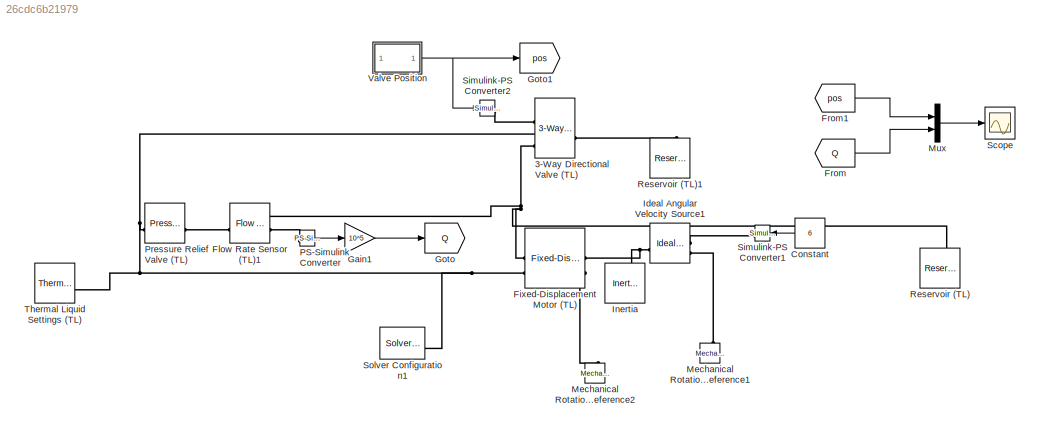
MODEL slx_26cdc6b21979
KIND model
CONFIG AbsTol = auto
CONFIG EnableMultiTasking = off
CONFIG FixedStep = auto
CONFIG MaxStep = auto
CONFIG MinStep = auto
CONFIG RelTol = 1e-3
CONFIG SampleTimeConstraint = Unconstrained
CONFIG SolverName = VariableStepAuto
CONFIG StartTime = 0.0
CONFIG StopTime = 10.0
BLOCK [Reference] 3-Way Directional Valve (TL)  REF=SimscapeFluids_lib/Thermal Liquid/Valves & Orifices/Directional Control
Valves/3-Way Directional
Valve (TL)
  SourceBlock = SimscapeFluids_lib/Thermal Liquid/Valves & Orifices/Directional Control\nValves/3-Way Directional\nValve (TL)
  SourceType = 3-Way Directional\nValve (TL)
BLOCK [Constant] Constant
  NameLocation = top
  Value = 6
BLOCK [Reference] Fixed-Displacement Motor (TL)  REF=SimscapeFluids_lib/Thermal Liquid/Pumps & Motors/Fixed-Displacement
Motor (TL)
  SourceBlock = SimscapeFluids_lib/Thermal Liquid/Pumps & Motors/Fixed-Displacement\nMotor (TL)
  SourceType = Fixed-Displacement\nMotor (TL)
BLOCK [Reference] Flow Rate Sensor (TL)1  REF=fl_lib/Thermal Liquid/Sensors/Flow Rate Sensor
(TL)
  SourceBlock = fl_lib/Thermal Liquid/Sensors/Flow Rate Sensor\n(TL)
  SourceType = Flow Rate Sensor\n(TL)
BLOCK [From] From
  GotoTag = Q
BLOCK [From] From1
  GotoTag = pos
BLOCK [Gain] Gain1
  Gain = 10^5
BLOCK [Goto] Goto
  GotoTag = Q
BLOCK [Goto] Goto1
  GotoTag = pos
BLOCK [Reference] Ideal Angular Velocity Source1  REF=fl_lib/Mechanical/Mechanical Sources/Ideal Angular
Velocity Source
  SourceBlock = fl_lib/Mechanical/Mechanical Sources/Ideal Angular\nVelocity Source
  SourceType = Ideal Angular\nVelocity Source
BLOCK [Reference] Inertia  REF=fl_lib/Mechanical/Rotational Elements/Inertia
  NameLocation = right
  SourceBlock = fl_lib/Mechanical/Rotational Elements/Inertia
  SourceType = Inertia
BLOCK [Reference] Mechanical Rotational Reference1  REF=fl_lib/Mechanical/Rotational Elements/Mechanical
Rotational Reference
  NameLocation = right
  SourceBlock = fl_lib/Mechanical/Rotational Elements/Mechanical\nRotational Reference
  SourceType = Mechanical\nRotational Reference
BLOCK [Reference] Mechanical Rotational Reference2  REF=fl_lib/Mechanical/Rotational Elements/Mechanical
Rotational Reference
  NameLocation = right
  SourceBlock = fl_lib/Mechanical/Rotational Elements/Mechanical\nRotational Reference
  SourceType = Mechanical\nRotational Reference
BLOCK [Mux] Mux
  DisplayOption = bar
  Inputs = 2
BLOCK [Reference] PS-Simulink Converter  REF=nesl_utility/PS-Simulink
Converter
  SourceBlock = nesl_utility/PS-Simulink\nConverter
  SourceType = PS-Simulink\nConverter
BLOCK [Reference] Pressure Relief Valve (TL)  REF=SimscapeFluids_lib/Thermal Liquid/Valves & Orifices/Pressure Control
Valves/Pressure Relief
Valve (TL)
  SourceBlock = SimscapeFluids_lib/Thermal Liquid/Valves & Orifices/Pressure Control\nValves/Pressure Relief\nValve (TL)
  SourceType = Pressure Relief\nValve (TL)
BLOCK [Reference] Reservoir (TL)  REF=fl_lib/Thermal Liquid/Elements/Reservoir (TL)
  NameLocation = right
  SourceBlock = fl_lib/Thermal Liquid/Elements/Reservoir (TL)
  SourceType = Reservoir (TL)
BLOCK [Reference] Reservoir (TL)1  REF=fl_lib/Thermal Liquid/Elements/Reservoir (TL)
  NameLocation = right
  SourceBlock = fl_lib/Thermal Liquid/Elements/Reservoir (TL)
  SourceType = Reservoir (TL)
BLOCK [Scope] Scope
  Floating = off
  NumInputPorts = 1
  ScopeSpecificationString = Simulink.scopes.TimeScopeBlockCfg('CurrentConfiguration', extmgr.ConfigurationSet(extmgr.Configuration('Core','General UI',true),extmgr.Configuration('Core','Source UI',true),extmgr.Configuration('Sources','WiredSimulink',true),extmgr.Configuration('Visuals','Time Domain',true,'SerializedDisplays',{struct('MinYLimReal','-0.44695','MaxYLimReal','3.02256','YLabelReal','','MinYLimMag','0.00000','MaxY...<+1395ch>
BLOCK [Reference] Simulink-PS Converter1  REF=nesl_utility/Simulink-PS
Converter
  NameLocation = top
  SourceBlock = nesl_utility/Simulink-PS\nConverter
  SourceType = Simulink-PS\nConverter
BLOCK [Reference] Simulink-PS Converter2  REF=nesl_utility/Simulink-PS
Converter
  SourceBlock = nesl_utility/Simulink-PS\nConverter
  SourceType = Simulink-PS\nConverter
BLOCK [Reference] Solver Configuration1  REF=nesl_utility/Solver
Configuration
  SourceBlock = nesl_utility/Solver\nConfiguration
  SourceType = Solver\nConfiguration
BLOCK [Reference] Thermal Liquid Settings (TL)  REF=fl_lib/Thermal Liquid/Utilities/Thermal Liquid
Settings (TL)
  SourceBlock = fl_lib/Thermal Liquid/Utilities/Thermal Liquid\nSettings (TL)
  SourceType = Thermal Liquid\nSettings (TL)
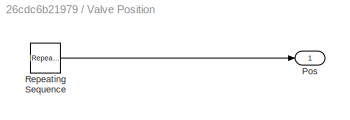
BLOCK [SubSystem] Valve Position
BLOCK [Outport] Valve Position/Pos
BLOCK [Reference] Valve Position/Repeating Sequence  REF=simulink/Sources/Repeating
Sequence
  SourceBlock = simulink/Sources/Repeating\nSequence
  SourceType = Repeating table
LINE Constant:1 -> Simulink-PS Converter1:1
LINE From1:1 -> Mux:1
LINE From:1 -> Mux:2
LINE Gain1:1 -> Goto:1
LINE Mux:1 -> Scope:1
LINE PS-Simulink Converter:1 -> Gain1:1
LINE Valve Position/Repeating Sequence:1 -> Valve Position/Pos:1
NET Valve Position:1 -> Goto1:1, Simulink-PS Converter2:1
PLINE 3-Way Directional Valve (TL):LConn1 -- Reservoir (TL)1:LConn1
PLINE 3-Way Directional Valve (TL):RConn1 -- Simulink-PS Converter2:RConn1
PNET net1: 3-Way Directional Valve (TL):RConn2 -- Fixed-Displacement Motor (TL):LConn2 -- Pressure Relief Valve (TL):LConn1 -- Solver Configuration1:RConn1 -- Thermal Liquid Settings (TL):RConn1
PNET net2: 3-Way Directional Valve (TL):RConn3 -- Fixed-Displacement Motor (TL):LConn1 -- Flow Rate Sensor (TL)1:RConn1 -- Reservoir (TL):LConn1
PNET net3: Fixed-Displacement Motor (TL):RConn1 -- Ideal Angular Velocity Source1:LConn1 -- Inertia:LConn1
PLINE Fixed-Displacement Motor (TL):RConn2 -- Mechanical Rotational Reference2:LConn1
PLINE Flow Rate Sensor (TL)1:LConn1 -- Pressure Relief Valve (TL):RConn1
PLINE Flow Rate Sensor (TL)1:RConn3 -- PS-Simulink Converter:LConn1
PLINE Ideal Angular Velocity Source1:RConn1 -- Simulink-PS Converter1:RConn1
PLINE Ideal Angular Velocity Source1:RConn2 -- Mechanical Rotational Reference1:LConn1
note: NET lines group one-source signal fan-out (src -> all destinations, sorted); 1:1 wires keep LINE; PNET lines group multi-terminal physical nets as a canonical sorted terminal list (undirected conserving connections); 2-terminal nets keep the pairwise PLINE form
